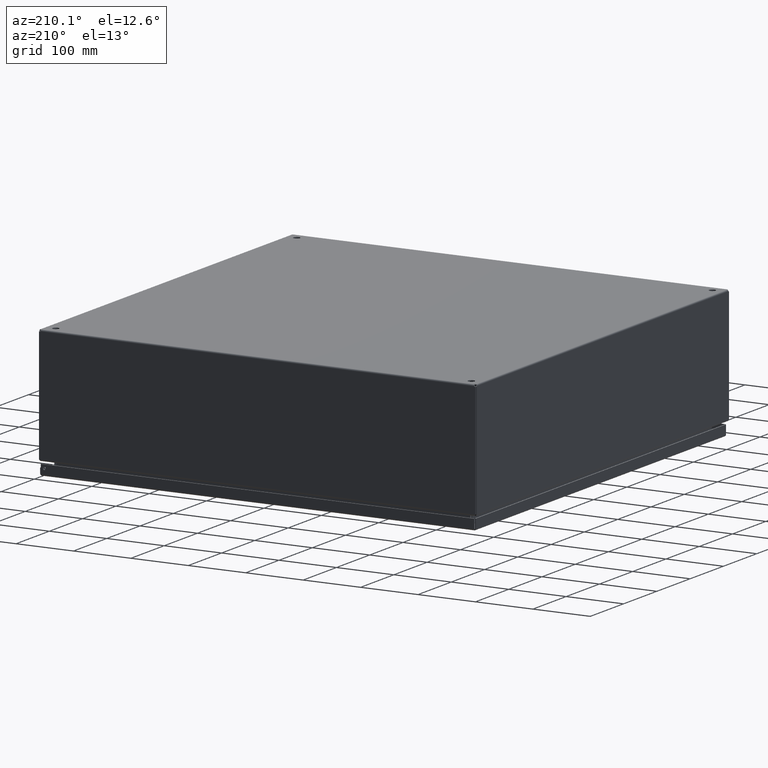
[diagram: clean part render]
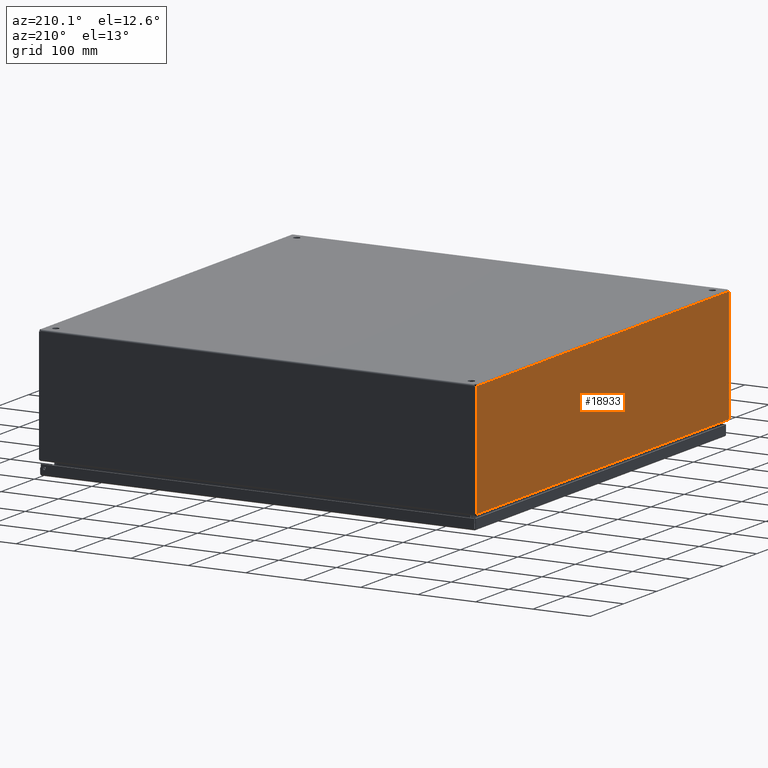
[diagram: same view with one face highlighted and labeled with its STEP entity id]
A machine part, auxiliary view. The second image highlights one B-rep face of the part: STEP entity #18933.
In plain terms, the highlighted planar face has unit normal (1, 0, 0).
Its self-contained STEP definition (entity closure, byte-faithful):
#17748=CARTESIAN_POINT('',(30.000000000000451,29.914951456544468,7.894749999999991));
#17749=VERTEX_POINT('',#17748);
#17778=CARTESIAN_POINT('',(30.000000000000494,0.085048543456039,7.894750000000008));
#17779=VERTEX_POINT('',#17778);
#17793=CARTESIAN_POINT('',(30.000000000000448,29.914951456544468,7.894749999999992));
#17794=DIRECTION('',(0.0,-1.0,0.0));
#17795=VECTOR('',#17794,29.829902913088429);
#17796=LINE('',#17793,#17795);
#17797=EDGE_CURVE('',#17749,#17779,#17796,.T.);
#18448=CARTESIAN_POINT('',(30.000000000000483,0.080000000000001,7.894750000000011));
#18449=VERTEX_POINT('',#18448);
#18456=CARTESIAN_POINT('',(30.000000000000473,0.085048543456040,7.894750000000009));
#18457=DIRECTION('',(0.0,-1.0,0.0));
#18458=VECTOR('',#18457,0.005048543456038);
#18459=LINE('',#18456,#18458);
#18460=EDGE_CURVE('',#17779,#18449,#18459,.T.);
#18626=CARTESIAN_POINT('',(30.000000000000455,29.920000000000005,7.894749999999994));
#18627=VERTEX_POINT('',#18626);
#18628=CARTESIAN_POINT('',(30.000000000000448,29.920000000000005,7.894749999999992));
#18629=DIRECTION('',(0.0,-1.0,0.0));
#18630=VECTOR('',#18629,0.005048543455537);
#18631=LINE('',#18628,#18630);
#18632=EDGE_CURVE('',#18627,#17749,#18631,.T.);
#18657=CARTESIAN_POINT('',(29.999999999999979,29.920000000000005,0.129782883345316));
#18658=VERTEX_POINT('',#18657);
#18659=CARTESIAN_POINT('',(29.999999999998860,29.920000000000005,7.894749999999995));
#18660=DIRECTION('',(1.413771E-013,0.0,-1.0));
#18661=VECTOR('',#18660,7.764967116654679);
#18662=LINE('',#18659,#18661);
#18663=EDGE_CURVE('',#18627,#18658,#18662,.T.);
#18821=CARTESIAN_POINT('',(29.999999999999979,0.117233160675648,0.105249999999990));
#18822=VERTEX_POINT('',#18821);
#18829=CARTESIAN_POINT('',(29.999999999999986,0.080000000000004,0.129782883345321));
#18830=VERTEX_POINT('',#18829);
#18831=CARTESIAN_POINT('',(29.999999999999979,0.062108078884581,0.062108078884581));
#18832=DIRECTION('',(-1.0,0.0,0.0));
#18833=DIRECTION('',(0.0,0.0,1.0));
#18834=AXIS2_PLACEMENT_3D('',#18831,#18832,#18833);
#18835=CIRCLE('',#18834,0.070000000000000);
#18836=EDGE_CURVE('',#18830,#18822,#18835,.T.);
#18900=CARTESIAN_POINT('',(30.000000000000220,15.000000000000004,4.009483078884579));
#18901=DIRECTION('',(-1.0,0.0,0.0));
#18902=DIRECTION('',(0.0,0.0,1.0));
#18903=AXIS2_PLACEMENT_3D('',#18900,#18901,#18902);
#18904=PLANE('',#18903);
#18905=ORIENTED_EDGE('',*,*,#18632,.T.);
#18906=ORIENTED_EDGE('',*,*,#17797,.T.);
#18907=ORIENTED_EDGE('',*,*,#18460,.T.);
#18908=CARTESIAN_POINT('',(29.999999999999993,0.080000000000001,0.129782883345321));
#18909=DIRECTION('',(0.0,0.0,1.0));
#18910=VECTOR('',#18909,7.764967116654689);
#18911=LINE('',#18908,#18910);
#18912=EDGE_CURVE('',#18830,#18449,#18911,.T.);
#18913=ORIENTED_EDGE('',*,*,#18912,.F.);
#18914=ORIENTED_EDGE('',*,*,#18836,.T.);
#18915=CARTESIAN_POINT('',(29.999999999999975,29.882766839324354,0.105249999999996));
#18916=VERTEX_POINT('',#18915);
#18917=CARTESIAN_POINT('',(29.999999999999989,0.117233160675648,0.105249999999990));
#18918=DIRECTION('',(0.0,1.0,0.0));
#18919=VECTOR('',#18918,29.765533678648708);
#18920=LINE('',#18917,#18919);
#18921=EDGE_CURVE('',#18822,#18916,#18920,.T.);
#18922=ORIENTED_EDGE('',*,*,#18921,.T.);
#18923=CARTESIAN_POINT('',(29.999999999999975,29.937891921115412,0.062108078884570));
#18924=DIRECTION('',(-1.0,0.0,0.0));
#18925=DIRECTION('',(0.0,0.0,1.0));
#18926=AXIS2_PLACEMENT_3D('',#18923,#18924,#18925);
#18927=CIRCLE('',#18926,0.070000000000000);
#18928=EDGE_CURVE('',#18916,#18658,#18927,.T.);
#18929=ORIENTED_EDGE('',*,*,#18928,.T.);
#18930=ORIENTED_EDGE('',*,*,#18663,.F.);
#18931=EDGE_LOOP('',(#18905,#18906,#18907,#18913,#18914,#18922,#18929,#18930));
#18932=FACE_OUTER_BOUND('',#18931,.T.);
#18933=ADVANCED_FACE('',(#18932),#18904,.F.);